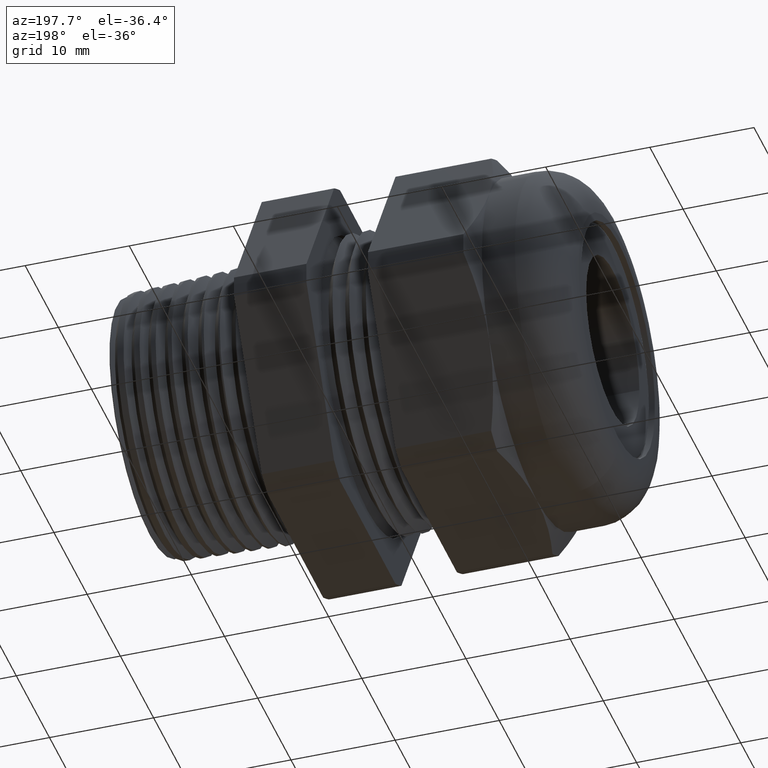
[diagram: clean part render]
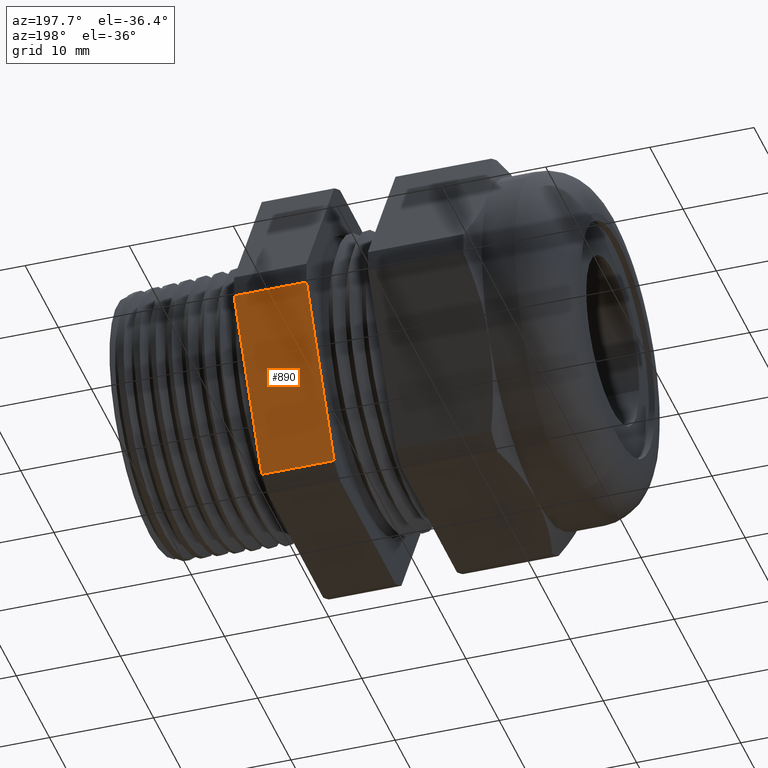
[diagram: same view with one face highlighted and labeled with its STEP entity id]
A machine part, auxiliary view. The second image highlights one B-rep face of the part: STEP entity #890.
In plain terms, the highlighted planar face has unit normal (0, 0.866, -0.5).
Its self-contained STEP definition (entity closure, byte-faithful):
#13 = EDGE_CURVE ( 'NONE', #419, #420, #1350, .T. ) ;
#419 = VERTEX_POINT ( 'NONE', #2188 ) ;
#420 = VERTEX_POINT ( 'NONE', #2187 ) ;
#728 = VERTEX_POINT ( 'NONE', #2782 ) ;
#783 = EDGE_CURVE ( 'NONE', #728, #419, #2867, .T. ) ;
#788 = EDGE_CURVE ( 'NONE', #789, #420, #2862, .T. ) ;
#789 = VERTEX_POINT ( 'NONE', #2918 ) ;
#813 = EDGE_CURVE ( 'NONE', #728, #789, #2899, .T. ) ;
#890 = ADVANCED_FACE ( 'NONE', ( #2995 ), #2994, .T. ) ;
#891 = EDGE_LOOP ( 'NONE', ( #943, #944, #945, #946 ) ) ;
#943 = ORIENTED_EDGE ( 'NONE', *, *, #813, .T. ) ;
#944 = ORIENTED_EDGE ( 'NONE', *, *, #788, .T. ) ;
#945 = ORIENTED_EDGE ( 'NONE', *, *, #13, .F. ) ;
#946 = ORIENTED_EDGE ( 'NONE', *, *, #783, .F. ) ;
#1347 = DIRECTION ( 'NONE',  ( 0.0000000000000000000, 0.5000000000000001100, 0.8660254037844386000 ) ) ;
#1348 = VECTOR ( 'NONE', #1347, 39.37007874015748100 ) ;
#1349 = CARTESIAN_POINT ( 'NONE',  ( 0.0000000000000000000, 0.3989927496919443200, -0.6089242856819405700 ) ) ;
#1350 = LINE ( 'NONE', #1349, #1348 ) ;
#2187 = CARTESIAN_POINT ( 'NONE',  ( 0.0000000000000000000, 0.7268402752278256800, -0.04107571431805931400 ) ) ;
#2188 = CARTESIAN_POINT ( 'NONE',  ( 0.0000000000000000000, 0.3989927496919443200, -0.6089242856819405700 ) ) ;
#2782 = CARTESIAN_POINT ( 'NONE',  ( -0.2736318407960199300, 0.3989927496919443200, -0.6089242856819406800 ) ) ;
#2854 = DIRECTION ( 'NONE',  ( 1.000000000000000000, 0.0000000000000000000, 0.0000000000000000000 ) ) ;
#2855 = VECTOR ( 'NONE', #2854, 39.37007874015748100 ) ;
#2856 = CARTESIAN_POINT ( 'NONE',  ( -2.992185896283379600, 0.7268402752278256800, -0.04107571431805931400 ) ) ;
#2862 = LINE ( 'NONE', #2856, #2855 ) ;
#2864 = DIRECTION ( 'NONE',  ( 1.000000000000000000, 0.0000000000000000000, 0.0000000000000000000 ) ) ;
#2865 = VECTOR ( 'NONE', #2864, 39.37007874015748100 ) ;
#2866 = CARTESIAN_POINT ( 'NONE',  ( -2.992185896283379600, 0.3989927496919443200, -0.6089242856819405700 ) ) ;
#2867 = LINE ( 'NONE', #2866, #2865 ) ;
#2892 = DIRECTION ( 'NONE',  ( 0.0000000000000000000, 0.5000000000000001100, 0.8660254037844386000 ) ) ;
#2893 = VECTOR ( 'NONE', #2892, 39.37007874015748100 ) ;
#2894 = CARTESIAN_POINT ( 'NONE',  ( -0.2736318407960199300, 0.7020415124598851100, -0.08402843139697983900 ) ) ;
#2899 = LINE ( 'NONE', #2894, #2893 ) ;
#2918 = CARTESIAN_POINT ( 'NONE',  ( -0.2736318407960196500, 0.7268402752278256800, -0.04107571431805931400 ) ) ;
#2990 = DIRECTION ( 'NONE',  ( 0.0000000000000000000, 0.5000000000000001100, 0.8660254037844386000 ) ) ;
#2991 = DIRECTION ( 'NONE',  ( 0.0000000000000000000, 0.8660254037844386000, -0.5000000000000001100 ) ) ;
#2992 = CARTESIAN_POINT ( 'NONE',  ( -2.992185896283379600, 0.3989927496919443200, -0.6089242856819405700 ) ) ;
#2993 = AXIS2_PLACEMENT_3D ( 'NONE', #2992, #2991, #2990 ) ;
#2994 = PLANE ( 'NONE',  #2993 ) ;
#2995 = FACE_OUTER_BOUND ( 'NONE', #891, .T. ) ;